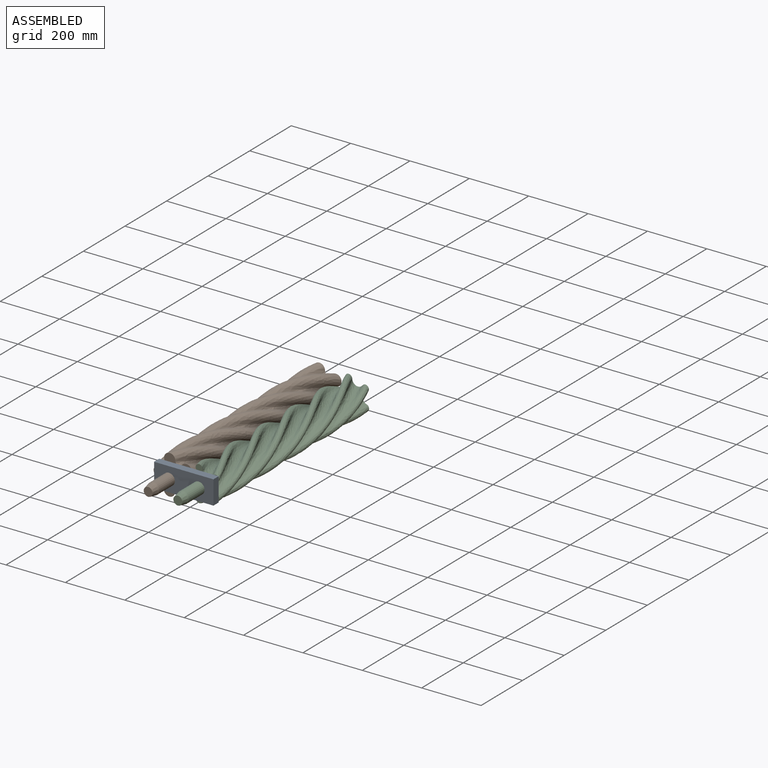
[diagram: assembled view]
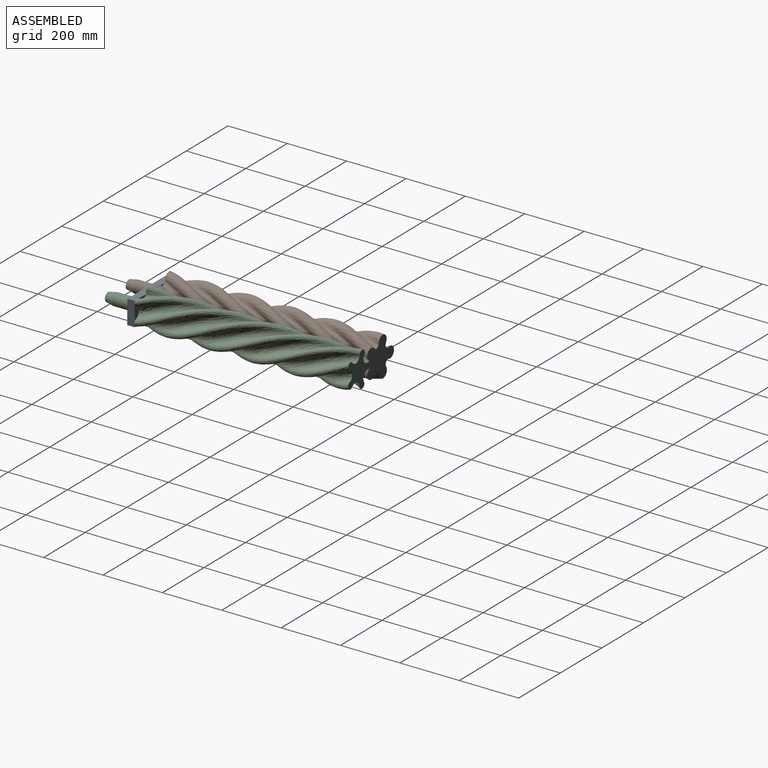
[diagram: assembled view, second angle]
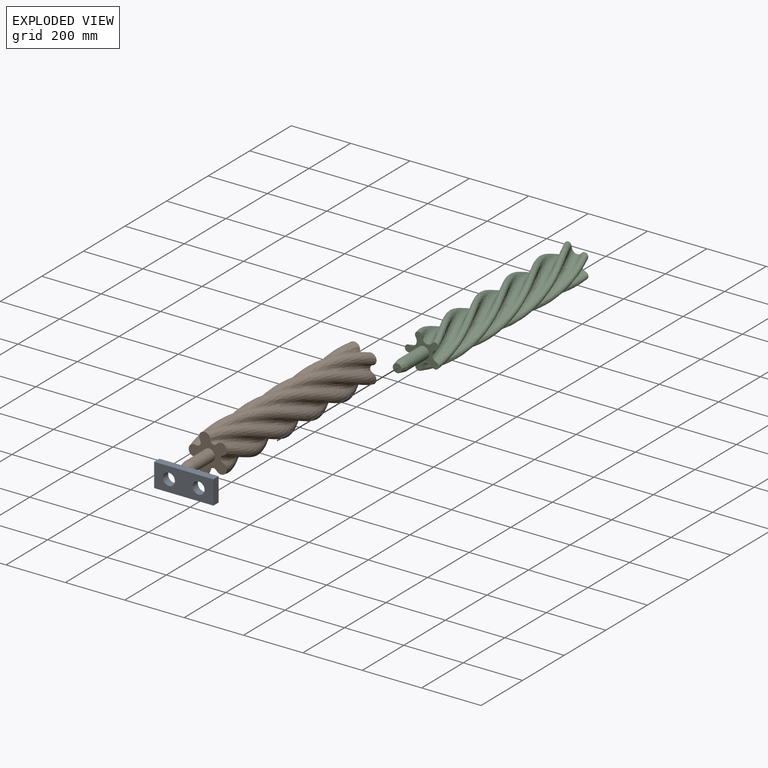
[diagram: exploded view]
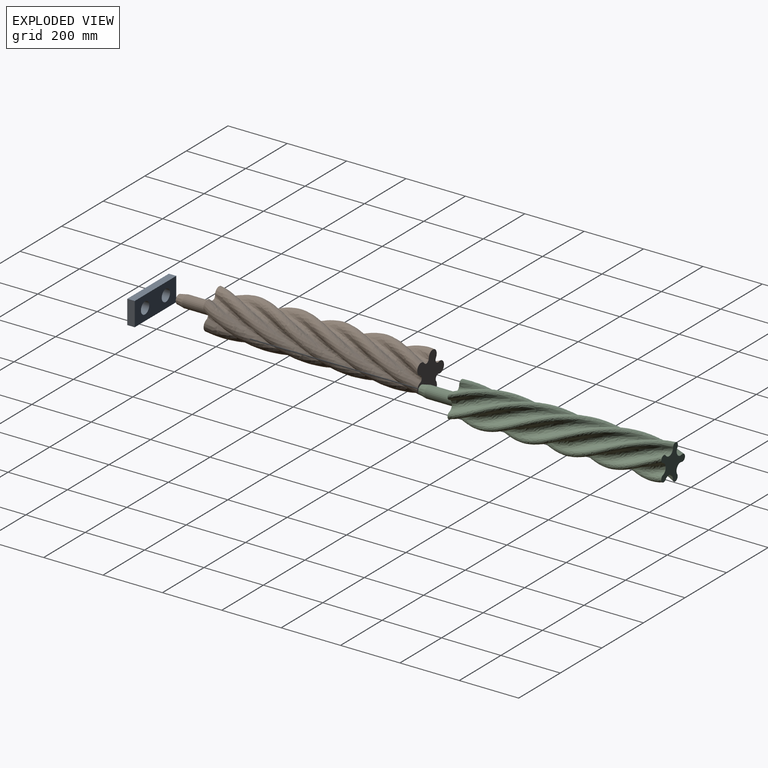
[diagram: exploded view, second angle]
ASSEMBLY  parts=3 mates=2
PART A: 8 faces, bbox 200x25x80 mm
  f0: plane 200x25mm, normal (0,0,-1), area 5000mm2, adj f1,f4,f6,f7
  f1: plane 80x25mm, normal (1,0,0), area 2000mm2, adj f0,f2,f6,f7
  f2: plane 200x25mm, normal (0,0,1), area 5000mm2, adj f1,f4,f6,f7
  f3: cylinder r=20mm len=40mm, axis (0,1,0), area 3141.6mm2, adj f6,f7
  f4: plane 80x25mm, normal (-1,0,0), area 2000mm2, adj f0,f2,f6,f7
  f5: cylinder r=20mm len=40mm, axis (0,1,0), area 3141.6mm2, adj f6,f7
  f6: plane 200x80mm, normal (0,-1,0), area 13486.7mm2, adj f0,f1,f2,f3,f4,f5
  f7: plane 200x80mm, normal (0,1,0), area 13486.7mm2, adj f0,f1,f2,f3,f4,f5
PART B: 15 faces, bbox 141.9x845x141.2 mm
  f0: plane 133.3x128.65mm, normal (0,-1,0), area 8652.9mm2, adj f2,f3,f4,f5,f6,f7,f8,f9
  f1: plane 133.3x128.65mm, normal (0,1,0), area 9909.6mm2, adj f2,f3,f4,f5,f6,f7,f8,f9
  f2: bspline ~720x141.86mm, area 54576.5mm2, adj f0,f1,f3,f11
  f3: bspline ~720x95.87mm, area 22114.4mm2, adj f0,f1,f2,f4
  f4: bspline ~720x141.86mm, area 54576.5mm2, adj f0,f1,f3,f5
  f5: bspline ~720x95.87mm, area 22114.4mm2, adj f0,f1,f4,f6
  f6: bspline ~720x141.86mm, area 54576.5mm2, adj f0,f1,f5,f7
  f7: bspline ~720x95.87mm, area 22114.4mm2, adj f0,f1,f6,f8
  f8: bspline ~720x141.86mm, area 54576.5mm2, adj f0,f1,f7,f9
  f9: bspline ~720x95.87mm, area 22114.4mm2, adj f0,f1,f8,f10
  f10: bspline ~720x141.86mm, area 54576.5mm2, adj f0,f1,f9,f11
  f11: bspline ~720x95.87mm, area 22114.4mm2, adj f0,f1,f2,f10
  f12: cylinder r=20mm len=100mm, axis (0,1,0), area 12566.4mm2, adj f0,f14
  f13: plane 30x30mm, normal (0,-1,0), area 706.9mm2, adj f14
  f14: cone r=15mm half-angle=11.3deg, axis (0,1,0), area 2803.3mm2, adj f12,f13
PART C: 15 faces, bbox 125.2x845x125.5 mm
  f0: plane 118.71x114.06mm, normal (0,-1,0), area 5112mm2, adj f2,f3,f4,f5,f6,f7,f8,f9
  f1: plane 118.71x114.06mm, normal (0,1,0), area 6368.6mm2, adj f2,f3,f4,f5,f6,f7,f8,f9
  f2: bspline ~720x125.45mm, area 33730.1mm2, adj f0,f1,f3,f11
  f3: bspline ~720x95.87mm, area 35781.9mm2, adj f0,f1,f2,f4
  f4: bspline ~720x125.45mm, area 33730.1mm2, adj f0,f1,f3,f5
  f5: bspline ~720x95.87mm, area 35781.9mm2, adj f0,f1,f4,f6
  f6: bspline ~720x125.45mm, area 33730.1mm2, adj f0,f1,f5,f7
  f7: bspline ~720x95.87mm, area 35781.9mm2, adj f0,f1,f6,f8
  f8: bspline ~720x125.45mm, area 33730.1mm2, adj f0,f1,f7,f9
  f9: bspline ~720x95.87mm, area 35781.9mm2, adj f0,f1,f8,f10
  f10: bspline ~720x125.45mm, area 33730.1mm2, adj f0,f1,f9,f11
  f11: bspline ~720x95.87mm, area 35781.9mm2, adj f0,f1,f2,f10
  f12: cylinder r=20mm len=100mm, axis (0,1,0), area 12566.4mm2, adj f0,f14
  f13: plane 30x30mm, normal (0,-1,0), area 706.9mm2, adj f14
  f14: cone r=15mm half-angle=11.3deg, axis (0,1,0), area 2803.3mm2, adj f12,f13
PLACE A t=(-0.92,-4.19,-41.01)mm fixed
PLACE B rot(axis=(0,1,0),162.7deg) t=(-50.92,-4.19,-1.01)mm
PLACE C rot(axis=(0,-1,0),162.7deg) t=(49.08,-4.19,-1.01)mm
MATE revolute A.f3 <-> B.f12  axis (0,1,0) through (-50.92,-4.19,-1.01)mm
MATE revolute C.f12 <-> A.f5  axis (0,-1,0) through (49.08,-4.19,-1.01)mm
